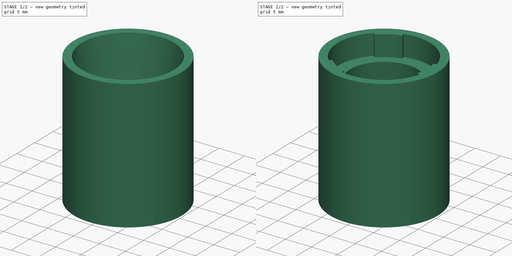
[diagram: build sequence overview — one tinted view per stage of 2, left to right]
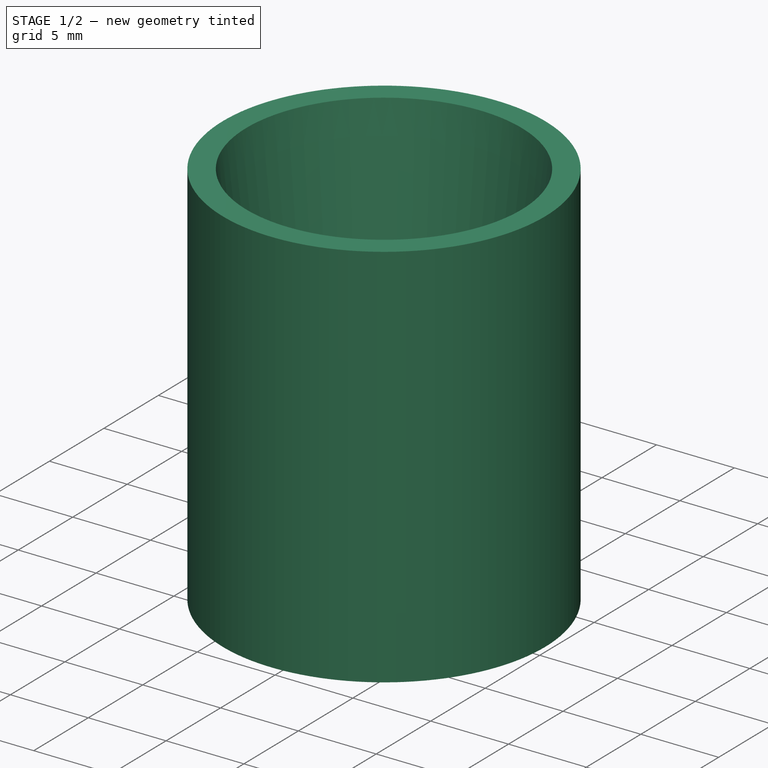
[diagram: stage 1 of 2 — iso view after this stage's code; geometry added in this stage tinted green]
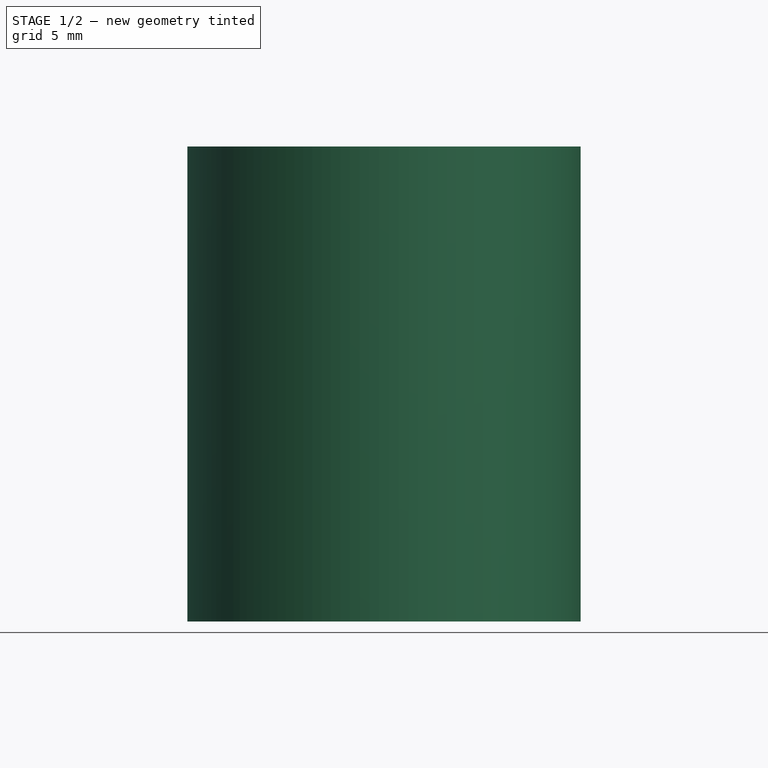
[diagram: stage 1 of 2 — front view after this stage's code; geometry added in this stage tinted green]
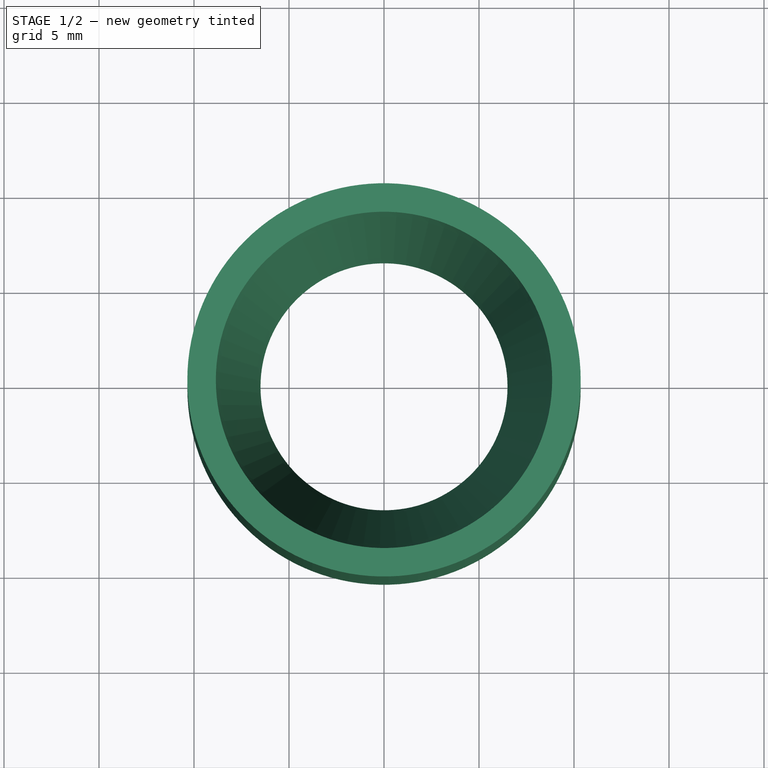
[diagram: stage 1 of 2 — top view after this stage's code; geometry added in this stage tinted green]
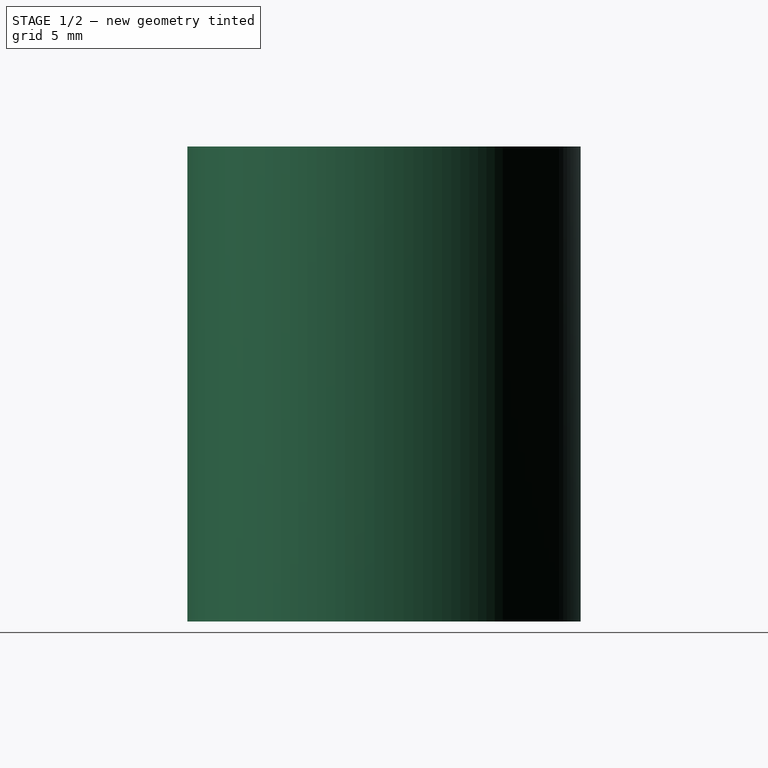
[diagram: stage 1 of 2 — right view after this stage's code; geometry added in this stage tinted green]
FCSTD DOCUMENT  (FreeCAD 0.15R4671 (Git))
Label: lens-focusing-tool
License: CreativeCommons Attribution-ShareAlike
LicenseURL: http://creativecommons.org/licenses/by-sa/4.0/
objects: Sketcher::SketchObject×2, Part::Feature×1, PartDesign::Revolution×1, PartDesign::Pad×1, PartDesign::PolarPattern×1, Part::Mirroring×1
note: 9 computed .brp shape members not serialized (recipe doc carries the construction recipe); baked Part::Feature solids carry a one-line shape summary decoded from their .brp

FEATURE [Part::Feature] PolarPattern  label="wide angle lens"
  Placement = pos=(0,0,0) rot=(0.57735,0.57735,0.57735;2.0944rad)
  shape: bbox 17.17 x 17.5 x 11.4 mm, 23 faces (baked)
FEATURE [Sketcher::SketchObject] Sketch
  Placement = pos=(0,0,0) rot=(1,0,0;1.5708rad)
  sketch-geometry (6):
    g0: LineSegment StartX=8.85 StartY=9.55374 StartZ=0 EndX=10.35 EndY=9.55374 EndZ=0
    g1: LineSegment StartX=10.35 StartY=9.55374 StartZ=0 EndX=10.35 EndY=34.5537 EndZ=0
    g2: LineSegment StartX=10.35 StartY=34.5537 StartZ=0 EndX=8.85 EndY=34.5537 EndZ=0
    g3: LineSegment StartX=8.85 StartY=34.5537 StartZ=0 EndX=6.5 EndY=13.5537 EndZ=0
    g4: LineSegment StartX=6.5 StartY=13.5537 StartZ=0 EndX=8.85 EndY=13.5537 EndZ=0
    g5: LineSegment StartX=8.85 StartY=13.5537 StartZ=0 EndX=8.85 EndY=9.55374 EndZ=0
  constraints (17):
    c: Horizontal(g0)
    c: Coincident(g0,g1)
    c: Vertical(g1)
    c: Coincident(g1,g2)
    c: Horizontal(g2)
    c: Coincident(g2,g3)
    c: Coincident(g3,g4)
    c: Horizontal(g4)
    c: Coincident(g4,g5)
    c: Vertical(g5)
    c: Coincident(g0,g5)
    c: DistanceY(g1) = 25
    c: DistanceX(g3) = 6.5
    c: DistanceX(g0) = 8.85
    c: DistanceX(g0) = 1.5
    c: DistanceY(g5) = -4
    c: DistanceX(g2) = -1.5
FEATURE [PartDesign::Revolution] Revolution
  Angle = 360
  Axis = (0,0,1)
  Base = (0,0,0)
  Placement = pos=(0,0,0) rot=(1,0,0;1.5708rad)
  ReferenceAxis = -> Sketch [V_Axis]
  Reversed = true
  Sketch = -> Sketch
FEATURE [Sketcher::SketchObject] Sketch001
  ExternalGeometry = -> [Revolution]
  Placement = pos=(0,0,13.5537) rot=(1,0,0;3.14159rad)
  Support = -> Revolution [Face5]
  sketch-geometry (6):
    g0: ArcOfCircle CenterX=0 CenterY=0 CenterZ=0 NormalX=0 NormalY=0 NormalZ=1 Radius=8.25 StartAngle=6.01325 EndAngle=6.55312
    g1: LineSegment [constr] StartX=0 StartY=0 StartZ=0 EndX=7.95126 EndY=-2.2 EndZ=0
    g2: LineSegment StartX=7.95126 StartY=-2.2 StartZ=0 EndX=8.52953 EndY=-2.36 EndZ=0
    g3: LineSegment [constr] StartX=0 StartY=0 StartZ=0 EndX=7.95126 EndY=2.2 EndZ=0
    g4: LineSegment StartX=7.95126 StartY=2.2 StartZ=0 EndX=8.52953 EndY=2.36 EndZ=0
    g5: ArcOfCircle CenterX=0 CenterY=0 CenterZ=0 NormalX=0 NormalY=0 NormalZ=1 Radius=8.85 StartAngle=6.01325 EndAngle=6.55312
  constraints (17):
    c: Coincident(g0,g-1)
    c: Coincident(g-1,g1)
    c: Coincident(g1,g0)
    c: Coincident(g1,g2)
    c: PointOnObject(g2,g-3)
    c: Parallel(g2,g1)
    c: Coincident(g-1,g3)
    c: Coincident(g3,g0)
    c: Coincident(g3,g4)
    c: PointOnObject(g4,g-3)
    c: Coincident(g5,g-1)
    c: Coincident(g5,g4)
    c: Coincident(g5,g2)
    c: DistanceX(g0,g0) = 0
    c: Radius(g0) = 8.25
    c: DistanceY(g0,g0) = -4.4
    c: Parallel(g4,g3)
FEATURE [PartDesign::Pad] Pad
  Length = 4
  Length2 = 100
  Placement = pos=(0,0,0) rot=(1,0,0;1.5708rad)
  Sketch = -> Sketch001
  Type = 0
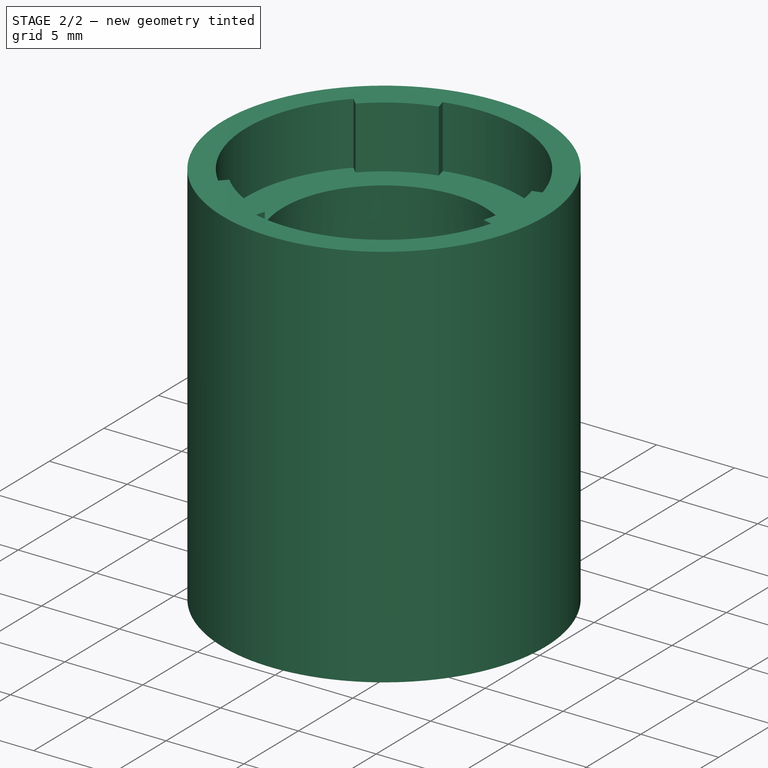
[diagram: stage 2 of 2 — iso view after this stage's code; geometry added in this stage tinted green]
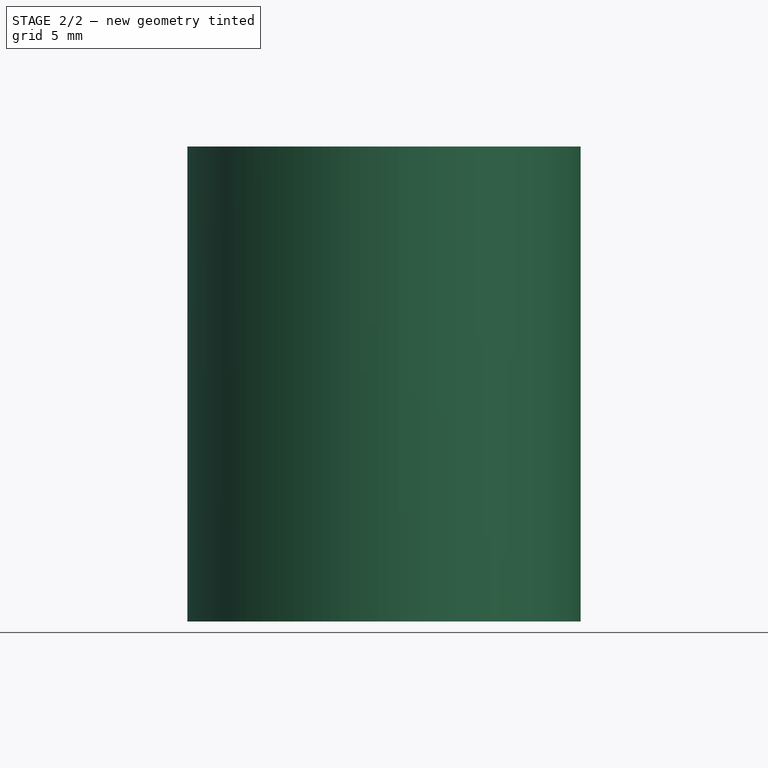
[diagram: stage 2 of 2 — front view after this stage's code; geometry added in this stage tinted green]
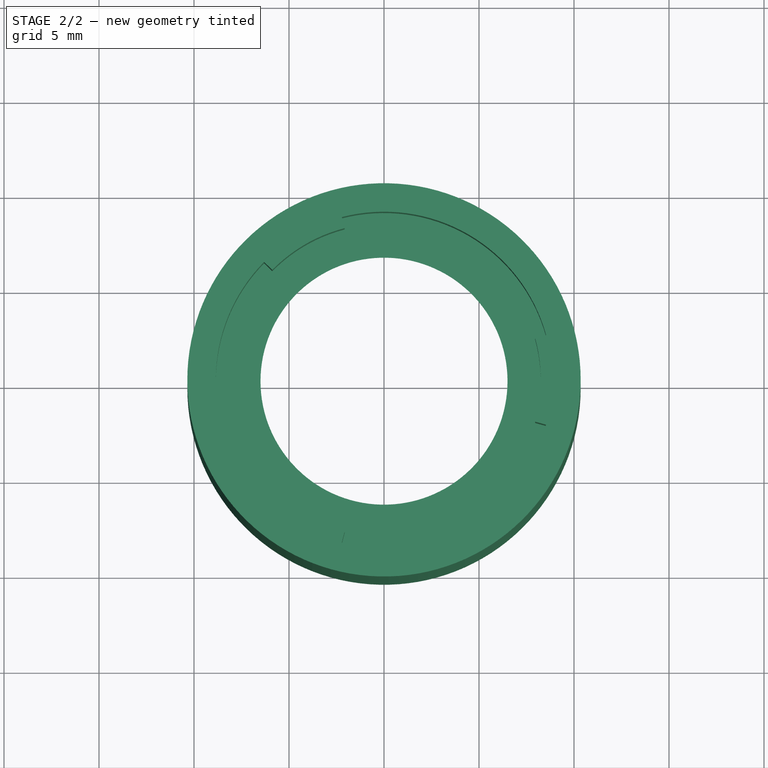
[diagram: stage 2 of 2 — top view after this stage's code; geometry added in this stage tinted green]
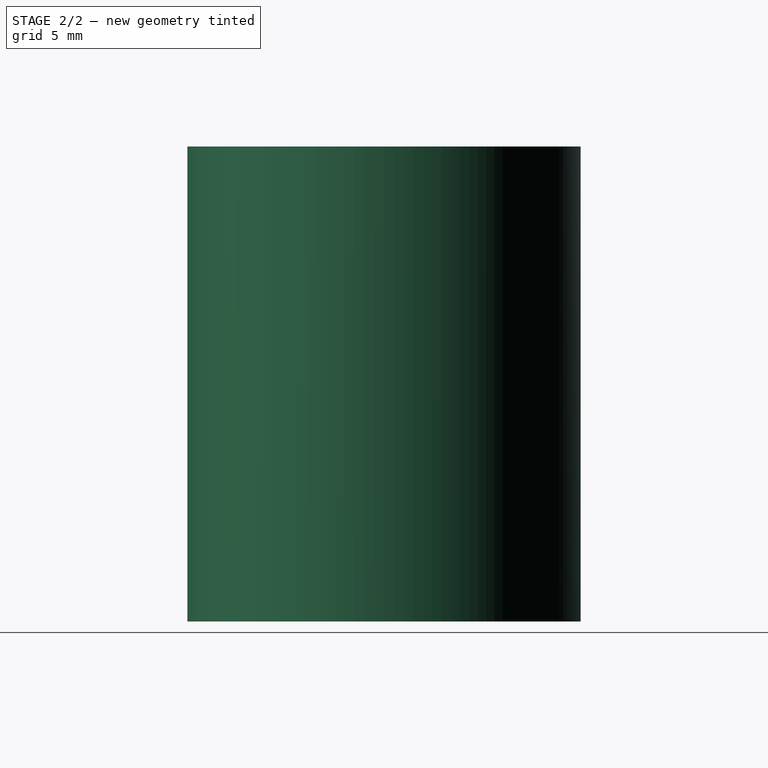
[diagram: stage 2 of 2 — right view after this stage's code; geometry added in this stage tinted green]
FEATURE [PartDesign::PolarPattern] PolarPattern001
  Angle = 360
  Axis = -> Sketch001 [N_Axis]
  Occurrences = 3
  Originals = -> [Pad]
  Placement = pos=(0,0,0) rot=(1,0,0;1.5708rad)
FEATURE [Part::Mirroring] Part__Mirroring  label="lens focusing tool (print)"
  Base = (0,0,0)
  Normal = (0,0,1)
  Source = -> PolarPattern001
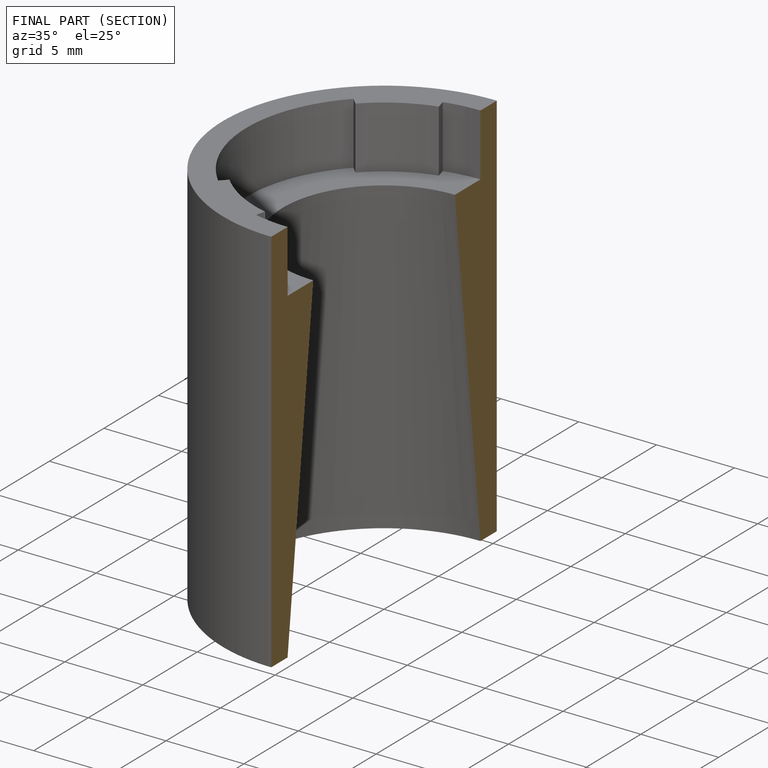
[diagram: finished part — half-section view (interior)]
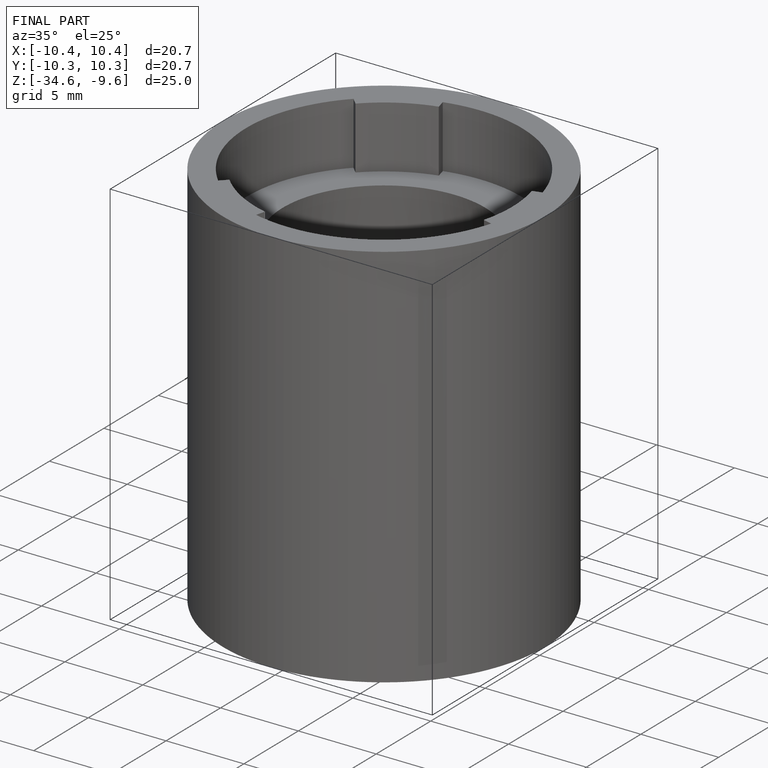
[diagram: finished part — iso view with bounding-box wireframe]
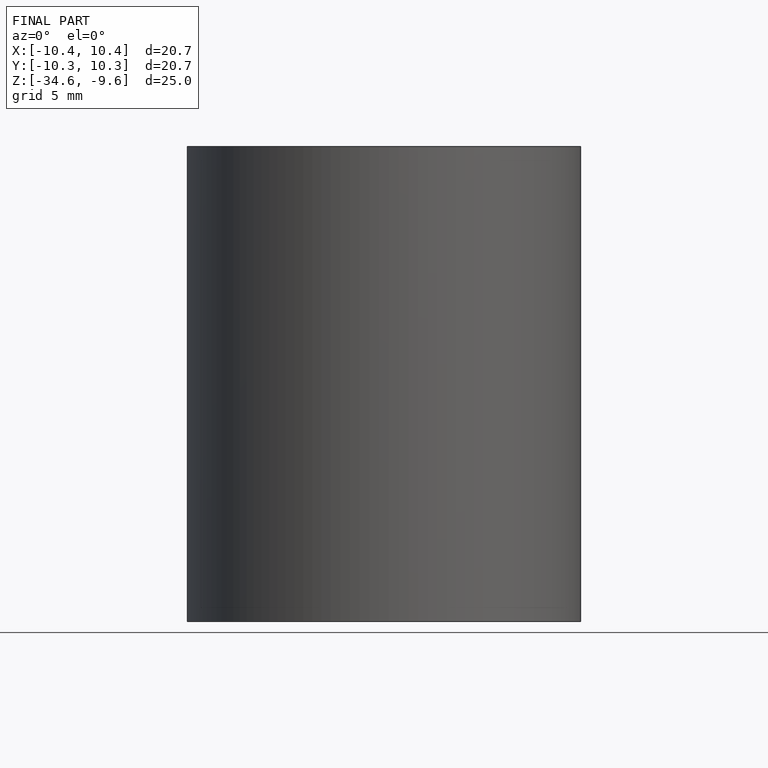
[diagram: finished part — front view with bounding-box wireframe]
